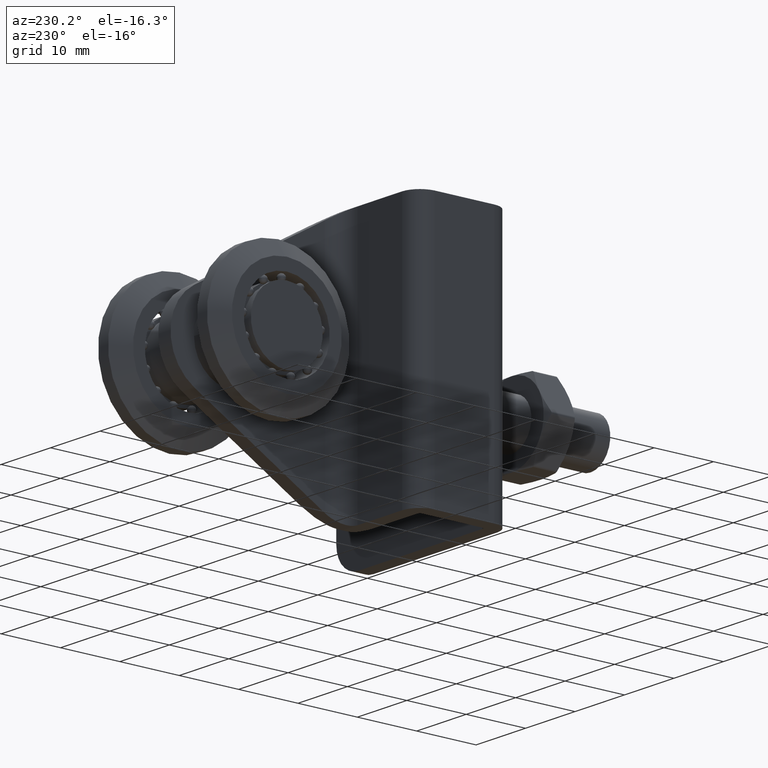
[diagram: clean part render]
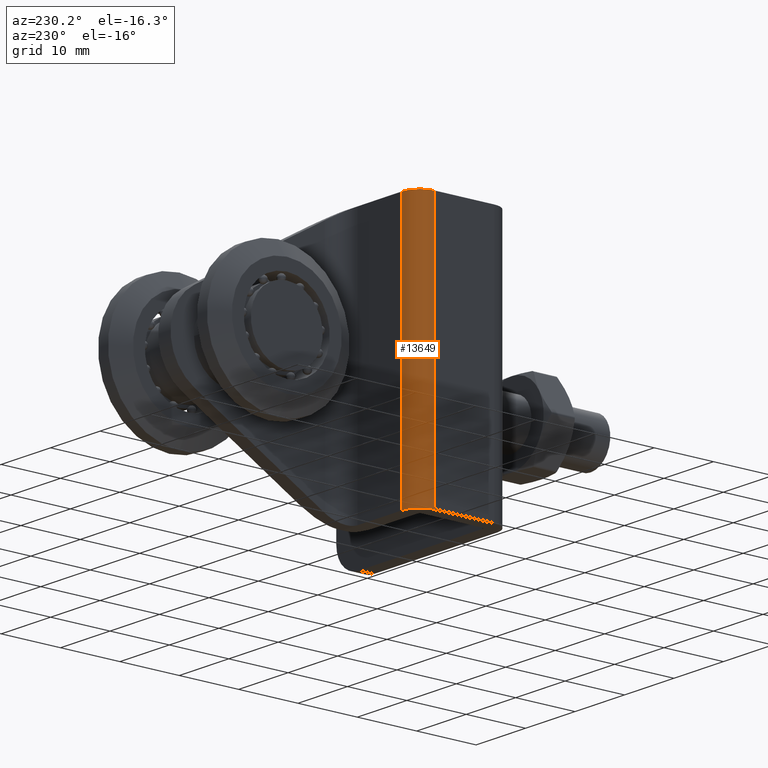
[diagram: same view with one face highlighted and labeled with its STEP entity id]
A machine part, auxiliary view. The second image highlights one B-rep face of the part: STEP entity #13649.
In plain terms, the highlighted cylindrical surface (edge-blend (fillet) strip) has radius 3 mm, axis along (-0, -0, -1).
Its self-contained STEP definition (entity closure, byte-faithful):
#246 = VERTEX_POINT ( 'NONE', #11952 ) ;
#448 = ORIENTED_EDGE ( 'NONE', *, *, #11252, .T. ) ;
#913 = DIRECTION ( 'NONE',  ( -0.000000000000000000, -0.000000000000000000, -1.000000000000000000 ) ) ;
#940 = CIRCLE ( 'NONE', #13756, 2.999999999999999112 ) ;
#1269 = VECTOR ( 'NONE', #1450, 1000.000000000000000 ) ;
#1450 = DIRECTION ( 'NONE',  ( -0.000000000000000000, -0.000000000000000000, -1.000000000000000000 ) ) ;
#2239 = DIRECTION ( 'NONE',  ( -1.000000000000000000, 0.000000000000000000, 0.000000000000000000 ) ) ;
#3707 = VERTEX_POINT ( 'NONE', #11198 ) ;
#3858 = VERTEX_POINT ( 'NONE', #16973 ) ;
#3999 = EDGE_CURVE ( 'NONE', #3707, #10964, #8860, .T. ) ;
#4320 = EDGE_CURVE ( 'NONE', #3858, #246, #11741, .T. ) ;
#4784 = DIRECTION ( 'NONE',  ( -0.000000000000000000, -0.000000000000000000, -1.000000000000000000 ) ) ;
#5046 = CIRCLE ( 'NONE', #9921, 2.999999999999999112 ) ;
#5274 = DIRECTION ( 'NONE',  ( 0.000000000000000000, 0.000000000000000000, 1.000000000000000000 ) ) ;
#5514 = CYLINDRICAL_SURFACE ( 'NONE', #8289, 2.999999999999999112 ) ;
#6530 = CARTESIAN_POINT ( 'NONE',  ( -13.25000000000000178, -9.500000000000005329, -21.50000000000000000 ) ) ;
#7469 = DIRECTION ( 'NONE',  ( 0.000000000000000000, 0.000000000000000000, 1.000000000000000000 ) ) ;
#8289 = AXIS2_PLACEMENT_3D ( 'NONE', #16665, #913, #2239 ) ;
#8635 = VECTOR ( 'NONE', #4784, 1000.000000000000000 ) ;
#8860 = LINE ( 'NONE', #16103, #8635 ) ;
#8901 = CARTESIAN_POINT ( 'NONE',  ( -13.25000000000000178, -9.500000000000005329, 21.50000000000000000 ) ) ;
#9921 = AXIS2_PLACEMENT_3D ( 'NONE', #6530, #5274, #16133 ) ;
#10964 = VERTEX_POINT ( 'NONE', #10999 ) ;
#10999 = CARTESIAN_POINT ( 'NONE',  ( -16.25000000000000000, -9.500000000000026645, -21.50000000000000000 ) ) ;
#11198 = CARTESIAN_POINT ( 'NONE',  ( -16.25000000000000000, -9.500000000000026645, 21.50000000000000000 ) ) ;
#11252 = EDGE_CURVE ( 'NONE', #246, #10964, #5046, .T. ) ;
#11459 = EDGE_CURVE ( 'NONE', #3858, #3707, #940, .T. ) ;
#11741 = LINE ( 'NONE', #11831, #1269 ) ;
#11755 = ORIENTED_EDGE ( 'NONE', *, *, #11459, .F. ) ;
#11831 = CARTESIAN_POINT ( 'NONE',  ( -13.24999999999997868, -6.500000000000005329, 21.50000000000000000 ) ) ;
#11952 = CARTESIAN_POINT ( 'NONE',  ( -13.24999999999997868, -6.500000000000005329, -21.50000000000000000 ) ) ;
#12846 = DIRECTION ( 'NONE',  ( 1.000000000000000000, 0.000000000000000000, 0.000000000000000000 ) ) ;
#13591 = FACE_OUTER_BOUND ( 'NONE', #14966, .T. ) ;
#13649 = ADVANCED_FACE ( 'NONE', ( #13591 ), #5514, .T. ) ;
#13756 = AXIS2_PLACEMENT_3D ( 'NONE', #8901, #7469, #12846 ) ;
#14966 = EDGE_LOOP ( 'NONE', ( #448, #15358, #11755, #16186 ) ) ;
#15358 = ORIENTED_EDGE ( 'NONE', *, *, #3999, .F. ) ;
#16103 = CARTESIAN_POINT ( 'NONE',  ( -16.25000000000000000, -9.500000000000026645, 21.50000000000000000 ) ) ;
#16133 = DIRECTION ( 'NONE',  ( 1.000000000000000000, 0.000000000000000000, 0.000000000000000000 ) ) ;
#16186 = ORIENTED_EDGE ( 'NONE', *, *, #4320, .T. ) ;
#16665 = CARTESIAN_POINT ( 'NONE',  ( -13.25000000000000178, -9.500000000000005329, 21.50000000000000000 ) ) ;
#16973 = CARTESIAN_POINT ( 'NONE',  ( -13.24999999999997868, -6.500000000000005329, 21.50000000000000000 ) ) ;